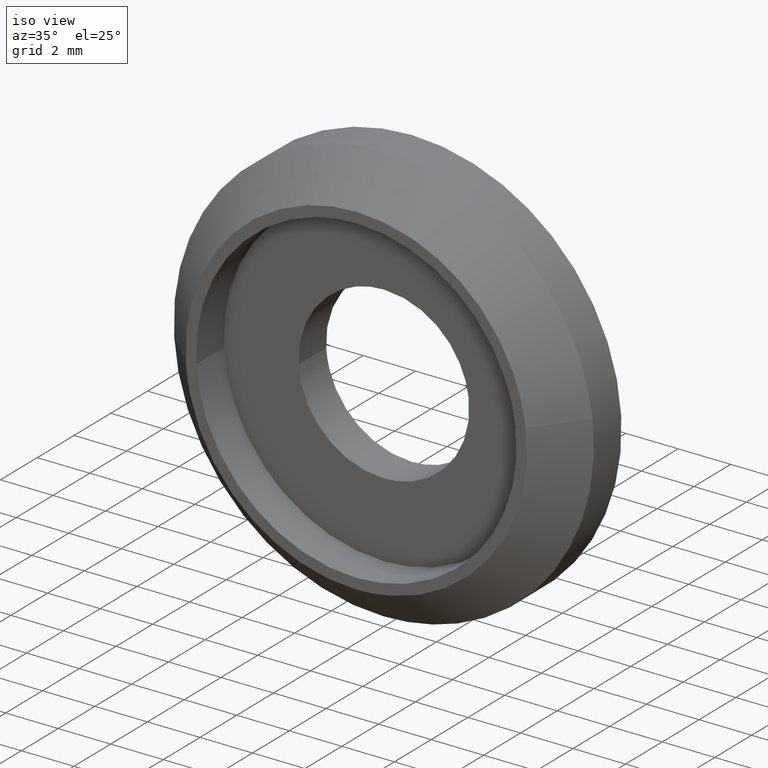
[diagram: clean part render]
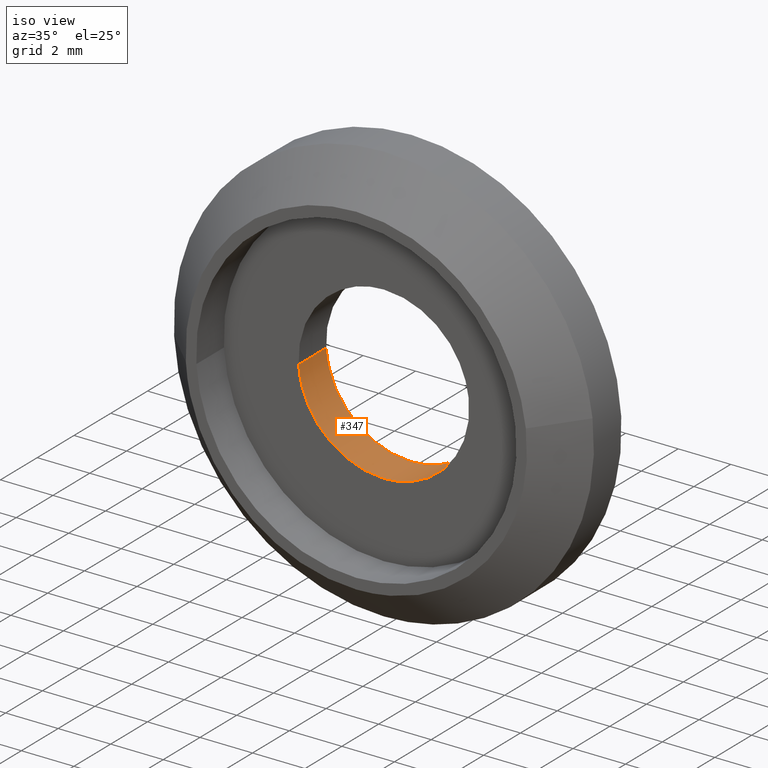
[diagram: same view with one face highlighted and labeled with its STEP entity id]
A machine part, iso view. The second image highlights one B-rep face of the part: STEP entity #347.
In plain terms, the highlighted face is a freeform B-spline surface patch.
Its self-contained STEP definition (entity closure, byte-faithful):
#245=CARTESIAN_POINT('',(3.227280960681916,-0.037500000000000,0.383611262634465));
#246=CARTESIAN_POINT('',(3.238259750207968,-0.037500000000000,0.291247868073427));
#247=CARTESIAN_POINT('',(3.243938094871067,-0.037500000000000,0.198407753488285));
#248=CARTESIAN_POINT('',(3.442345848359353,-0.037500000000000,-3.045530341382781));
#249=CARTESIAN_POINT('',(0.198407753488285,-0.037500000000000,-3.243938094871067));
#250=CARTESIAN_POINT('',(-3.045530341382781,-0.037500000000000,-3.442345848359353));
#251=CARTESIAN_POINT('',(-3.243938094871067,-0.037500000000000,-0.198407753488285));
#252=CARTESIAN_POINT('',(3.227280960681916,1.538437500000000,0.383611262634465));
#253=CARTESIAN_POINT('',(3.238259750207968,1.538437500000001,0.291247868073427));
#254=CARTESIAN_POINT('',(3.243938094871067,1.538437500000000,0.198407753488285));
#255=CARTESIAN_POINT('',(3.442345848359353,1.538437500000001,-3.045530341382781));
#256=CARTESIAN_POINT('',(0.198407753488285,1.538437500000000,-3.243938094871067));
#257=CARTESIAN_POINT('',(-3.045530341382781,1.538437500000001,-3.442345848359353));
#258=CARTESIAN_POINT('',(-3.243938094871067,1.538437500000000,-0.198407753488285));
#266=(BOUNDED_SURFACE()B_SPLINE_SURFACE(2,1,((#245,#252),(#246,#253),(#247,#254),(#248,#255),(#249,#256),(#250,#257),(#251,#258)),.UNSPECIFIED.,.F.,.F.,.U.)B_SPLINE_SURFACE_WITH_KNOTS((3,2,2,3),(2,2),(0.0,0.215391052434010,5.600167363284244,10.984943674134479),(0.0,1.0),.UNSPECIFIED.)GEOMETRIC_REPRESENTATION_ITEM()RATIONAL_B_SPLINE_SURFACE(((0.977505800795127,0.977505800795127),(0.988284271247462,0.988284271247462),(1.0,1.0),(0.707106781186548,0.707106781186548),(1.0,1.0),(0.707106781186548,0.707106781186548),(1.0,1.0)))REPRESENTATION_ITEM('')SURFACE());
#267=CARTESIAN_POINT('',(3.227281486811727,1.500000000000071,0.383606836308235));
#268=VERTEX_POINT('',#267);
#269=CARTESIAN_POINT('',(0.0,1.500000000000000,-3.250000000000000));
#270=VERTEX_POINT('',#269);
#271=CARTESIAN_POINT('',(3.227281486811727,1.500000000000071,0.383606836308235));
#272=CARTESIAN_POINT('',(3.250000000000000,1.500000000000000,0.192476152308770));
#273=CARTESIAN_POINT('',(3.250000000000000,1.500000000000000,0.0));
#274=CARTESIAN_POINT('',(3.250000000000000,1.500000000000000,-3.250000000000000));
#275=CARTESIAN_POINT('',(0.0,1.500000000000000,-3.250000000000000));
#283=(BOUNDED_CURVE()B_SPLINE_CURVE(2,(#271,#272,#273,#274,#275),.UNSPECIFIED.,.F.,.U.)B_SPLINE_CURVE_WITH_KNOTS((3,2,3),(0.229562705309400,0.250000000000000,0.500000000000000),.UNSPECIFIED.)CURVE()GEOMETRIC_REPRESENTATION_ITEM()RATIONAL_B_SPLINE_CURVE((0.956027208513637,0.976056219896924,1.0,0.707106781186547,1.0))REPRESENTATION_ITEM(''));
#284=EDGE_CURVE('',#268,#270,#283,.T.);
#285=ORIENTED_EDGE('',*,*,#284,.T.);
#286=CARTESIAN_POINT('',(-3.243938286670342,1.499999999999952,-0.198404617548119));
#287=VERTEX_POINT('',#286);
#288=CARTESIAN_POINT('',(0.0,1.500000000000000,-3.250000000000000));
#289=CARTESIAN_POINT('',(-3.057297678478167,1.500000000000000,-3.250000000000000));
#290=CARTESIAN_POINT('',(-3.243938286670342,1.499999999999951,-0.198404617548119));
#298=(BOUNDED_CURVE()B_SPLINE_CURVE(2,(#288,#289,#290),.UNSPECIFIED.,.F.,.U.)B_SPLINE_CURVE_WITH_KNOTS((3,3),(0.500000000000000,0.739333129044312),.UNSPECIFIED.)CURVE()GEOMETRIC_REPRESENTATION_ITEM()RATIONAL_B_SPLINE_CURVE((1.0,0.719603797862065,0.976072399162636))REPRESENTATION_ITEM(''));
#299=EDGE_CURVE('',#270,#287,#298,.T.);
#300=ORIENTED_EDGE('',*,*,#299,.T.);
#301=CARTESIAN_POINT('',(-3.243938284306497,3.469447E-017,-0.198404656197849));
#302=VERTEX_POINT('',#301);
#303=CARTESIAN_POINT('',(-3.243938284306497,3.469447E-017,-0.198404656197849));
#304=CARTESIAN_POINT('',(-3.243938286670342,1.499999999999952,-0.198404617548119));
#305=QUASI_UNIFORM_CURVE('',1,(#303,#304),.UNSPECIFIED.,.F.,.U.);
#306=EDGE_CURVE('',#302,#287,#305,.T.);
#307=ORIENTED_EDGE('',*,*,#306,.F.);
#308=CARTESIAN_POINT('',(0.0,0.0,-3.250000000000000));
#309=VERTEX_POINT('',#308);
#310=CARTESIAN_POINT('',(0.0,0.0,-3.250000000000000));
#311=CARTESIAN_POINT('',(-3.057297641984092,0.0,-3.250000000000000));
#312=CARTESIAN_POINT('',(-3.243938284306497,3.469447E-017,-0.198404656197849));
#320=(BOUNDED_CURVE()B_SPLINE_CURVE(2,(#310,#311,#312),.UNSPECIFIED.,.F.,.U.)B_SPLINE_CURVE_WITH_KNOTS((3,3),(0.500000000000000,0.739333126988512),.UNSPECIFIED.)CURVE()GEOMETRIC_REPRESENTATION_ITEM()RATIONAL_B_SPLINE_CURVE((1.0,0.719603800270584,0.976072394756659))REPRESENTATION_ITEM(''));
#321=EDGE_CURVE('',#309,#302,#320,.T.);
#322=ORIENTED_EDGE('',*,*,#321,.F.);
#323=CARTESIAN_POINT('',(3.227281480315944,3.194357E-017,0.383606890957840));
#324=VERTEX_POINT('',#323);
#325=CARTESIAN_POINT('',(3.227281480315944,3.194357E-017,0.383606890957840));
#326=CARTESIAN_POINT('',(3.250000000000000,0.0,0.192476179922436));
#327=CARTESIAN_POINT('',(3.250000000000000,0.0,0.0));
#328=CARTESIAN_POINT('',(3.250000000000000,0.0,-3.250000000000000));
#329=CARTESIAN_POINT('',(0.0,0.0,-3.250000000000000));
#337=(BOUNDED_CURVE()B_SPLINE_CURVE(2,(#325,#326,#327,#328,#329),.UNSPECIFIED.,.F.,.U.)B_SPLINE_CURVE_WITH_KNOTS((3,2,3),(0.229562702447560,0.250000000000000,0.500000000000000),.UNSPECIFIED.)CURVE()GEOMETRIC_REPRESENTATION_ITEM()RATIONAL_B_SPLINE_CURVE((0.956027202904301,0.976056216544070,1.0,0.707106781186547,1.0))REPRESENTATION_ITEM(''));
#338=EDGE_CURVE('',#324,#309,#337,.T.);
#339=ORIENTED_EDGE('',*,*,#338,.F.);
#340=CARTESIAN_POINT('',(3.227281480315944,3.194357E-017,0.383606890957840));
#341=CARTESIAN_POINT('',(3.227281486811727,1.500000000000071,0.383606836308235));
#342=QUASI_UNIFORM_CURVE('',1,(#340,#341),.UNSPECIFIED.,.F.,.U.);
#343=EDGE_CURVE('',#324,#268,#342,.T.);
#344=ORIENTED_EDGE('',*,*,#343,.T.);
#345=EDGE_LOOP('',(#285,#300,#307,#322,#339,#344));
#346=FACE_OUTER_BOUND('',#345,.T.);
#347=ADVANCED_FACE('',(#346),#266,.F.);